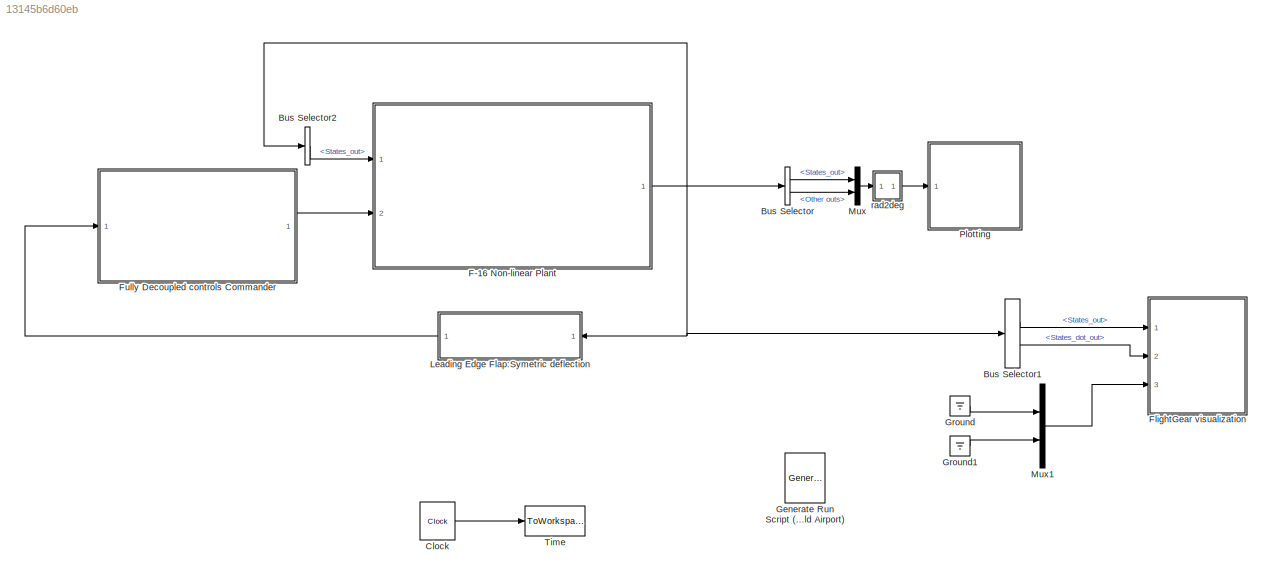
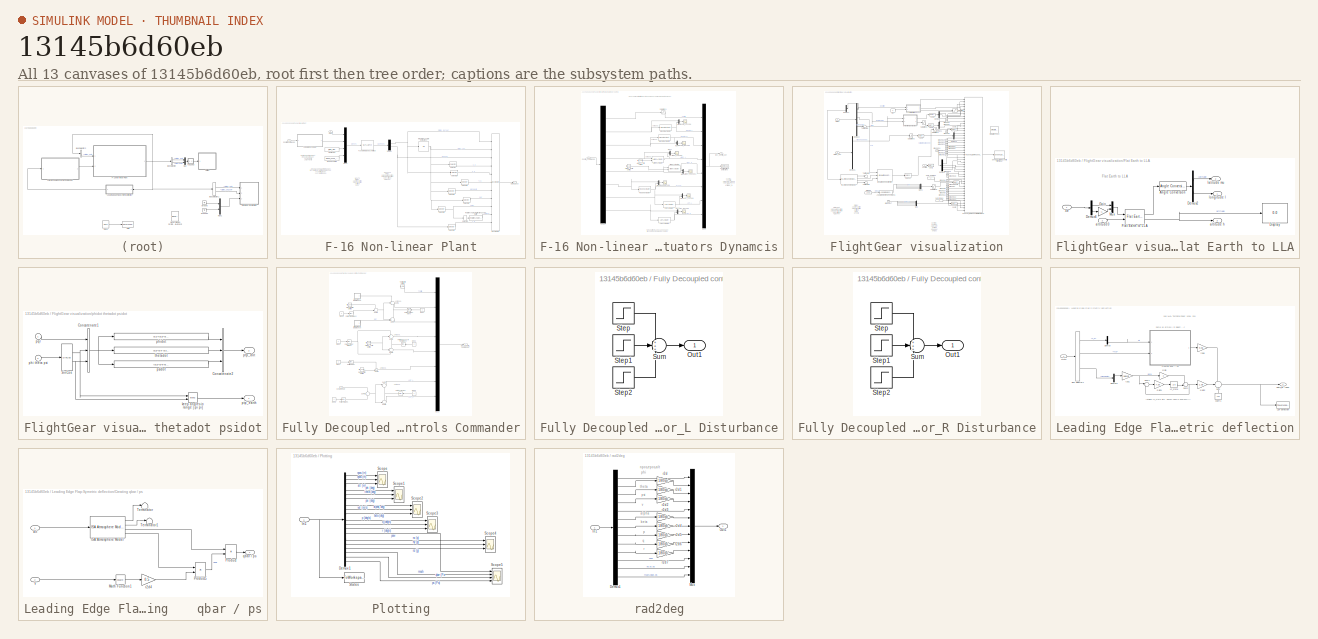
[diagram: thumbnail index - all 13 canvases of the model, root first then tree order]
MODEL slx_13145b6d60eb
KIND model
CONFIG InitFcn = mex nlplantASYM.c\n
BLOCK [BusSelector] Bus Selector
  OutputSignals = States_out,Other outs
  Ports = [1, 2]
BLOCK [BusSelector] Bus Selector1
  OutputSignals = States_out,States_dot_out
  Ports = [1, 2]
BLOCK [BusSelector] Bus Selector2
  OutputSignals = States_out
  Ports = [1, 1]
BLOCK [Clock] Clock
  Decimation = 50
  DisplayTime = on
BLOCK [SubSystem] F-16 Non-linear Plant
  FunctionWithSeparateData = off
  MaskHideContents = off
  MinAlgLoopOccurrences = off
  Opaque = off
  Ports = [2, 1]
  PropExecContextOutsideSubsystem = off
  RTWSystemCode = Auto
  RequestExecContextInheritance = off
BLOCK [SubSystem] F-16 Non-linear Plant/Actuators Dynamcis
  FunctionWithSeparateData = off
  MaskHideContents = off
  MinAlgLoopOccurrences = off
  Opaque = off
  Ports = [1, 1]
  PropExecContextOutsideSubsystem = off
  RTWSystemCode = Auto
  RequestExecContextInheritance = off
  TreatAsAtomicUnit = on
BLOCK [Reference] F-16 Non-linear Plant/Actuators Dynamcis/Aileron Actuator  REF=F16_Actuator_Library/Aileron
Actuator
  Ports = [2, 1]
  SourceBlock = F16_Actuator_Library/Aileron\nActuator
  SourceType = SubSystem
BLOCK [Reference] F-16 Non-linear Plant/Actuators Dynamcis/Aileron Actuator1  REF=F16_Actuator_Library/Aileron
Actuator
  Ports = [2, 1]
  SourceBlock = F16_Actuator_Library/Aileron\nActuator
  SourceType = SubSystem
BLOCK [Scope] F-16 Non-linear Plant/Actuators Dynamcis/Aileron_L Scope
  DataFormat = StructureWithTime
  Floating = off
  NumInputPorts = 1
  Ports = [1]
  SampleTime = 0
  SaveName = ScopeData7
  ShowLegends = off
  TimeRange = 30
BLOCK [Constant] F-16 Non-linear Plant/Actuators Dynamcis/Aileron_L Trim Setting
  Value = trim_control(2)
BLOCK [Scope] F-16 Non-linear Plant/Actuators Dynamcis/Aileron_R Scope1
  DataFormat = StructureWithTime
  Floating = off
  NumInputPorts = 1
  Ports = [1]
  SampleTime = 0
  SaveName = ScopeData10
  ShowLegends = off
  TimeRange = 30
BLOCK [Constant] F-16 Non-linear Plant/Actuators Dynamcis/Aileron_R Trim Setting
  Value = -trim_control(2)
BLOCK [ToWorkspace] F-16 Non-linear Plant/Actuators Dynamcis/Control Surface Deflections
  Decimation = 100
  MaxDataPoints = inf
  Ports = [1]
  SampleTime = -1
  VariableName = surfaces
BLOCK [Inport] F-16 Non-linear Plant/Actuators Dynamcis/Control_commands
  IconDisplay = Port number
BLOCK [Outport] F-16 Non-linear Plant/Actuators Dynamcis/Dec_Control_def
  IconDisplay = Port number
BLOCK [Demux] F-16 Non-linear Plant/Actuators Dynamcis/Demux
  DisplayOption = bar
  Outputs = 8
  Ports = [1, 8]
BLOCK [Reference] F-16 Non-linear Plant/Actuators Dynamcis/Elevator Actuator  REF=F16_Actuator_Library/Elevator
Actuator
  Ports = [1, 1]
  SourceBlock = F16_Actuator_Library/Elevator\nActuator
  SourceType = SubSystem
BLOCK [Reference] F-16 Non-linear Plant/Actuators Dynamcis/Elevator Actuator1  REF=F16_Actuator_Library/Elevator
Actuator
  Ports = [1, 1]
  SourceBlock = F16_Actuator_Library/Elevator\nActuator
  SourceType = SubSystem
BLOCK [Scope] F-16 Non-linear Plant/Actuators Dynamcis/Elevator_L Scope
  DataFormat = StructureWithTime
  Floating = off
  LimitDataPoints = off
  NumInputPorts = 1
  Ports = [1]
  SampleTime = 0
  SaveName = ScopeData6
  ShowLegends = off
  TimeRange = 5
  YMax = -2.33766
  YMin = -2.58372
BLOCK [Scope] F-16 Non-linear Plant/Actuators Dynamcis/Elevator_R Scope
  DataFormat = StructureWithTime
  Floating = off
  LimitDataPoints = off
  NumInputPorts = 1
  Ports = [1]
  SampleTime = 0
  SaveName = ScopeData9
  ShowLegends = off
  TimeRange = 5
  YMax = -2.33766
  YMin = -2.58372
BLOCK [Reference] F-16 Non-linear Plant/Actuators Dynamcis/LEF Actuator  REF=F16_Actuator_Library/LEF
Actuator
  Ports = [1, 1]
  SourceBlock = F16_Actuator_Library/LEF\nActuator
  SourceType = SubSystem
BLOCK [Reference] F-16 Non-linear Plant/Actuators Dynamcis/LEF Actuator1  REF=F16_Actuator_Library/LEF
Actuator
  Ports = [1, 1]
  SourceBlock = F16_Actuator_Library/LEF\nActuator
  SourceType = SubSystem
BLOCK [Scope] F-16 Non-linear Plant/Actuators Dynamcis/LEF_L Scope
  DataFormat = StructureWithTime
  Floating = off
  NumInputPorts = 1
  Ports = [1]
  SampleTime = 0
  SaveName = ScopeData11
  ShowLegends = off
BLOCK [Scope] F-16 Non-linear Plant/Actuators Dynamcis/LEF_R Scope
  DataFormat = StructureWithTime
  Floating = off
  NumInputPorts = 1
  Ports = [1]
  SampleTime = 0
  SaveName = ScopeData12
  ShowLegends = off
BLOCK [Mux] F-16 Non-linear Plant/Actuators Dynamcis/Mux
  DisplayOption = bar
  Inputs = 2
  Ports = [2, 1]
BLOCK [Mux] F-16 Non-linear Plant/Actuators Dynamcis/Mux1
  DisplayOption = bar
  Inputs = 2
  Ports = [2, 1]
BLOCK [Mux] F-16 Non-linear Plant/Actuators Dynamcis/Mux2
  DisplayOption = bar
  Inputs = 8
  Ports = [8, 1]
BLOCK [Mux] F-16 Non-linear Plant/Actuators Dynamcis/Mux3
  DisplayOption = bar
  Inputs = 2
  Ports = [2, 1]
BLOCK [Mux] F-16 Non-linear Plant/Actuators Dynamcis/Mux4
  DisplayOption = bar
  Inputs = 2
  Ports = [2, 1]
BLOCK [Mux] F-16 Non-linear Plant/Actuators Dynamcis/Mux5
  DisplayOption = bar
  Inputs = 2
  Ports = [2, 1]
BLOCK [Mux] F-16 Non-linear Plant/Actuators Dynamcis/Mux6
  DisplayOption = bar
  Inputs = 2
  Ports = [2, 1]
BLOCK [Mux] F-16 Non-linear Plant/Actuators Dynamcis/Mux7
  DisplayOption = bar
  Inputs = 2
  Ports = [2, 1]
BLOCK [Reference] F-16 Non-linear Plant/Actuators Dynamcis/Rudder Actuator  REF=F16_Actuator_Library/Rudder
Actuator
  Ports = [1, 1]
  SourceBlock = F16_Actuator_Library/Rudder\nActuator
  SourceType = SubSystem
BLOCK [Scope] F-16 Non-linear Plant/Actuators Dynamcis/Rudder Scope
  DataFormat = StructureWithTime
  Floating = off
  NumInputPorts = 1
  Ports = [1]
  SampleTime = 0
  SaveName = ScopeData8
  ShowLegends = off
BLOCK [Saturate] F-16 Non-linear Plant/Actuators Dynamcis/Saturation1
  InputPortMap = u0
  LowerLimit = 0
  Ports = [1, 1]
  UpperLimit = 1
BLOCK [BusCreator] F-16 Non-linear Plant/Bus Creator
  DisplayOption = bar
  Inputs = 11
  Ports = [11, 1]
BLOCK [Inport] F-16 Non-linear Plant/Control Commands
  IconDisplay = Port number
  Port = 2
BLOCK [Demux] F-16 Non-linear Plant/Demux
  Outputs = [13 6]
  Ports = [1, 2]
BLOCK [MATLABFcn] F-16 Non-linear Plant/F16 nlsim nlplant Asymetrical
  MATLABFcn = nlplantASYM
  OutputDimensions = 19
  OutputSignalType = real
  Ports = [1, 1]
BLOCK [Constant] F-16 Non-linear Plant/Fidelity Flag
  Value = fi_flag_Simulink
BLOCK [Integrator] F-16 Non-linear Plant/Integrate F16 State Derivatives
  InitialCondition = trim_state
  Ports = [1, 1]
BLOCK [Constant] F-16 Non-linear Plant/Model used flag
  Value = Model_used_flag
BLOCK [Mux] F-16 Non-linear Plant/Mux5
  DisplayOption = bar
  Inputs = [13 8 1 1]
  Ports = [4, 1]
BLOCK [Outport] F-16 Non-linear Plant/Output_bus
  IconDisplay = Port number
BLOCK [Reference] F-16 Non-linear Plant/Rotation Angles to Direction Cosine Matrix  REF=aerolibtransform2/Rotation Angles to
Direction Cosine Matrix
  AttributesFormatString = Rotation Order: %<rotationOrder>
  Ports = [1, 1]
  SourceBlock = aerolibtransform2/Rotation Angles to\nDirection Cosine Matrix
  SourceType = Ang2DCM
  rotationOrder = ZYX
BLOCK [Selector] F-16 Non-linear Plant/Selector
  IndexOptions = Index vector (dialog)
  Indices = [1:3]
  InputPortWidth = 13
  OutputSizes = 1
  Ports = [1, 1]
BLOCK [Selector] F-16 Non-linear Plant/Selector1
  IndexOptions = Index vector (dialog)
  Indices = [1:3]
  InputPortWidth = 13
  OutputSizes = 1
  Ports = [1, 1]
BLOCK [Selector] F-16 Non-linear Plant/Selector2
  IndexOptions = Index vector (dialog)
  Indices = [7]
  InputPortWidth = 13
  OutputSizes = 1
  Ports = [1, 1]
BLOCK [Selector] F-16 Non-linear Plant/Selector3
  IndexOptions = Index vector (dialog)
  Indices = [8:9]
  InputPortWidth = 13
  OutputSizes = 1
  Ports = [1, 1]
BLOCK [Selector] F-16 Non-linear Plant/Selector4
  IndexOptions = Index vector (dialog)
  Indices = [10:12]
  InputPortWidth = 13
  OutputSizes = 1
  Ports = [1, 1]
BLOCK [Selector] F-16 Non-linear Plant/Selector5
  IndexOptions = Index vector (dialog)
  Indices = [4:6]
  InputPortWidth = 13
  OutputSizes = 1
  Ports = [1, 1]
BLOCK [Selector] F-16 Non-linear Plant/Selector6
  IndexOptions = Index vector (dialog)
  Indices = [1:3]
  InputPortWidth = 6
  OutputSizes = 1
  Ports = [1, 1]
BLOCK [Selector] F-16 Non-linear Plant/Selector7
  IndexOptions = Index vector (dialog)
  Indices = [3 2 1]
  InputPortWidth = 3
  OutputSizes = 1
  Ports = [1, 1]
BLOCK [Inport] F-16 Non-linear Plant/States
  IconDisplay = Port number
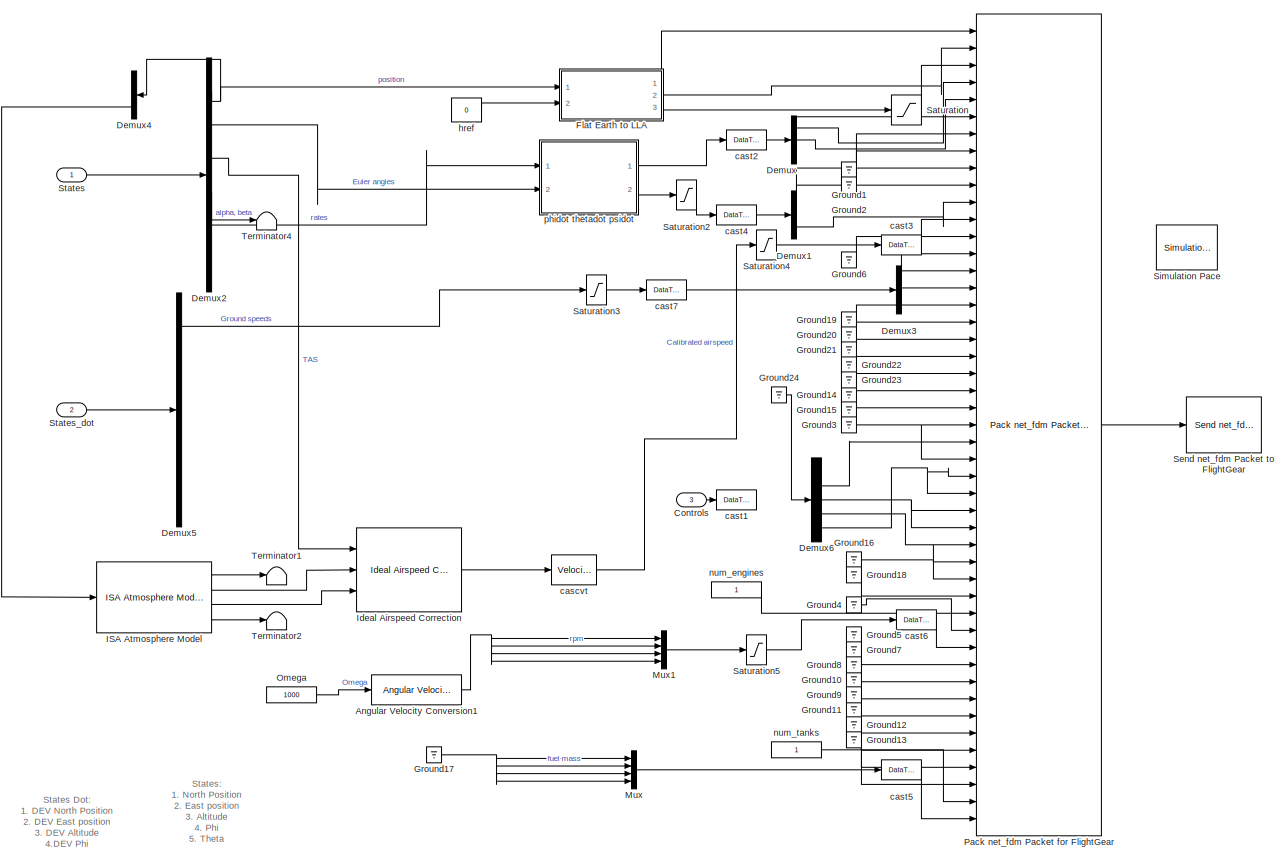
[diagram: FlightGear visualization - part 1/2, most of the canvas]
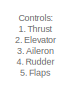
[diagram: FlightGear visualization - part 2/2, bottom center region]
BLOCK [SubSystem] FlightGear visualization
  FunctionWithSeparateData = off
  MaskHideContents = off
  MinAlgLoopOccurrences = off
  Opaque = off
  Ports = [3]
  PropExecContextOutsideSubsystem = off
  RTWSystemCode = Auto
  RequestExecContextInheritance = off
  TreatAsAtomicUnit = on
BLOCK [Reference] FlightGear visualization/Angular Velocity Conversion1  REF=aerolibconvert2/Angular Velocity
Conversion
  IU = rad/s
  OU = rpm
  Ports = [1, 1]
  SourceBlock = aerolibconvert2/Angular Velocity\nConversion
  SourceType = Angular Velocity Conversion
BLOCK [Inport] FlightGear visualization/Controls
  IconDisplay = Port number
  Port = 3
BLOCK [Demux] FlightGear visualization/Demux
  DisplayOption = bar
  Outputs = 3
  Ports = [1, 3]
BLOCK [Demux] FlightGear visualization/Demux1
  DisplayOption = bar
  Outputs = 3
  Ports = [1, 3]
BLOCK [Demux] FlightGear visualization/Demux2
  Outputs = [3 3 1 2 3 1]
  Ports = [1, 6]
BLOCK [Demux] FlightGear visualization/Demux3
  DisplayOption = bar
  Outputs = 3
  Ports = [1, 3]
BLOCK [Demux] FlightGear visualization/Demux4
  DisplayOption = bar
  Outputs = 3
  Ports = [1, 3]
BLOCK [Demux] FlightGear visualization/Demux5
  Outputs = [3 3 1 2 3 1]
  Ports = [1, 6]
BLOCK [Demux] FlightGear visualization/Demux6
  DisplayOption = bar
  Outputs = 5
  Ports = [1, 5]
BLOCK [SubSystem] FlightGear visualization/Flat Earth to LLA
  FunctionWithSeparateData = off
  MaskHideContents = off
  MinAlgLoopOccurrences = off
  Opaque = off
  Ports = [2, 3]
  PropExecContextOutsideSubsystem = off
  RTWSystemCode = Auto
  RequestExecContextInheritance = off
BLOCK [Reference] FlightGear visualization/Flat Earth to LLA/Angle Conversion  REF=aerolibconvert2/Angle Conversion
  IU = deg
  OU = rad
  Ports = [1, 1]
  SourceBlock = aerolibconvert2/Angle Conversion
  SourceType = Angle Conversion
BLOCK [Demux] FlightGear visualization/Flat Earth to LLA/Demux2
  Outputs = 2
  Ports = [1, 2]
BLOCK [Demux] FlightGear visualization/Flat Earth to LLA/Demux6
  DisplayOption = bar
  Outputs = [2 1]
  Ports = [1, 2]
BLOCK [Display] FlightGear visualization/Flat Earth to LLA/Display
  Decimation = 1
  Lockdown = off
  Ports = [1]
BLOCK [Reference] FlightGear visualization/Flat Earth to LLA/Flat Earth to LLA  REF=aerolibtransform2/Flat Earth to LLA
  F = 1/298.257223563
  LL0 = [latitude longitude]
  Ports = [2, 2]
  R = 6378137
  SourceBlock = aerolibtransform2/Flat Earth to LLA
  SourceType = Flat Earth to LLA
  psi = 0
  ptype = Earth (WGS84)
  units = Metric (MKS)
BLOCK [Gain] FlightGear visualization/Flat Earth to LLA/Gain
  Gain = -1
  OutDataTypeStr = Inherit: Inherit via internal rule
  ParamDataTypeStr = Inherit: Inherit via internal rule
  SaturateOnIntegerOverflow = off
BLOCK [Mux] FlightGear visualization/Flat Earth to LLA/Mux
  DisplayOption = bar
  Inputs = 2
  Ports = [2, 1]
BLOCK [Inport] FlightGear visualization/Flat Earth to LLA/Xe
  IconDisplay = Port number
BLOCK [Outport] FlightGear visualization/Flat Earth to LLA/altitude h
  IconDisplay = Port number
  Port = 3
BLOCK [Inport] FlightGear visualization/Flat Earth to LLA/altitude0
  IconDisplay = Port number
  Port = 2
BLOCK [Outport] FlightGear visualization/Flat Earth to LLA/latitude mu
  IconDisplay = Port number
  Port = 2
BLOCK [Outport] FlightGear visualization/Flat Earth to LLA/longitude l
  IconDisplay = Port number
BLOCK [Ground] FlightGear visualization/Ground1
BLOCK [Ground] FlightGear visualization/Ground10
BLOCK [Ground] FlightGear visualization/Ground11
BLOCK [Ground] FlightGear visualization/Ground12
BLOCK [Ground] FlightGear visualization/Ground13
BLOCK [Ground] FlightGear visualization/Ground14
BLOCK [Ground] FlightGear visualization/Ground15
BLOCK [Ground] FlightGear visualization/Ground16
BLOCK [Ground] FlightGear visualization/Ground17
BLOCK [Ground] FlightGear visualization/Ground18
BLOCK [Ground] FlightGear visualization/Ground19
BLOCK [Ground] FlightGear visualization/Ground2
BLOCK [Ground] FlightGear visualization/Ground20
BLOCK [Ground] FlightGear visualization/Ground21
BLOCK [Ground] FlightGear visualization/Ground22
BLOCK [Ground] FlightGear visualization/Ground23
BLOCK [Ground] FlightGear visualization/Ground24
BLOCK [Ground] FlightGear visualization/Ground3
BLOCK [Ground] FlightGear visualization/Ground4
BLOCK [Ground] FlightGear visualization/Ground5
BLOCK [Ground] FlightGear visualization/Ground6
BLOCK [Ground] FlightGear visualization/Ground7
BLOCK [Ground] FlightGear visualization/Ground8
BLOCK [Ground] FlightGear visualization/Ground9
BLOCK [Reference] FlightGear visualization/ISA Atmosphere Model  REF=aerolibatmos2/ISA Atmosphere Model
  L = 0.0065
  P0 = 101325
  Ports = [1, 4]
  R = 287.0531
  SourceBlock = aerolibatmos2/ISA Atmosphere Model
  SourceType = International Standard Atmosphere Model
  T0 = 288.15
  custom = off
  g = 9.80665
  gamma = 1.4
  h_strat = 20000
  h_trop = 11000
  rho0 = 1.225
BLOCK [Reference] FlightGear visualization/Ideal Airspeed Correction  REF=aerolibasang/Ideal Airspeed Correction
  Ports = [3, 1]
  SourceBlock = aerolibasang/Ideal Airspeed Correction
  SourceType = Ideal Airspeed Correction
  action = Warning
  units = Metric (MKS)
  vel_in = TAS
  vel_out_cas = TAS
  vel_out_eas = CAS
  vel_out_tas = CAS
BLOCK [Mux] FlightGear visualization/Mux
  DisplayOption = bar
  Ports = [4, 1]
BLOCK [Mux] FlightGear visualization/Mux1
  DisplayOption = bar
  Ports = [4, 1]
BLOCK [Constant] FlightGear visualization/Omega
  OutDataTypeStr = uint32
  Value = 1000
BLOCK [Reference] FlightGear visualization/Pack net_fdm Packet for FlightGear  REF=aerolibfltsims/Pack
net_fdm Packet
for FlightGear
  AttributesFormatString = FG VERSION: %<FlightGearVersion>
  FlightGearVersion = v2.0
  Ports = [47, 1]
  SampleTime = -1
  ShowControlSurfacePositionInputs = on
  ShowEngineFuelInputs = on
  ShowEnvironmentInputs = off
  ShowLandingGearInputs = off
  ShowPositionAttitudeInputs = on
  ShowVelocityAccelerationInputs = on
  SourceBlock = aerolibfltsims/Pack\nnet_fdm Packet\nfor FlightGear
  SourceType = FlightGearPackNetFdm
BLOCK [Saturate] FlightGear visualization/Saturation
  InputPortMap = u0
  LowerLimit = -1e5
  Ports = [1, 1]
  UpperLimit = 1e8
BLOCK [Saturate] FlightGear visualization/Saturation2
  InputPortMap = u0
  LowerLimit = -1e3
  Ports = [1, 1]
  UpperLimit = 1e3
BLOCK [Saturate] FlightGear visualization/Saturation3
  InputPortMap = u0
  LowerLimit = -1e4
  Ports = [1, 1]
  UpperLimit = 1e4
BLOCK [Saturate] FlightGear visualization/Saturation4
  InputPortMap = u0
  LowerLimit = -1e4
  Ports = [1, 1]
  UpperLimit = 1e4
BLOCK [Saturate] FlightGear visualization/Saturation5
  InputPortMap = u0
  LowerLimit = 0
  Ports = [1, 1]
  UpperLimit = 1e6
BLOCK [Reference] FlightGear visualization/Send net_fdm Packet to FlightGear  REF=aerolibfltsims/Send
net_fdm Packet
to FlightGear
  DestinationIpAddress = 127.0.0.1
  DestinationPort = 5502
  LocalIpPort = -1
  Ports = [1]
  SampleTime = -1
  SourceBlock = aerolibfltsims/Send\nnet_fdm Packet\nto FlightGear
  SourceType = FlightGearSendNetFdm
  varLen = off
BLOCK [Reference] FlightGear visualization/Simulation Pace  REF=aerolibanimutils/Simulation Pace
  AttributesFormatString = %<SimulationPace> sec/sec
  OutputPaceError = off
  Ports = []
  SampleTime = .04
  SimulationPace = 1
  SleepMode = MATLAB Thread
  SourceBlock = aerolibanimutils/Simulation Pace
  SourceType = Simulation Pace
BLOCK [Inport] FlightGear visualization/States
  IconDisplay = Port number
BLOCK [Inport] FlightGear visualization/States_dot
  IconDisplay = Port number
  Port = 2
BLOCK [Terminator] FlightGear visualization/Terminator1
BLOCK [Terminator] FlightGear visualization/Terminator2
BLOCK [Terminator] FlightGear visualization/Terminator4
BLOCK [Reference] FlightGear visualization/cascvt  REF=aerolibconvert/Velocity Conversion
  IU = m/s
  OU = kts
  Ports = [1, 1]
  SourceBlock = aerolibconvert/Velocity Conversion
  SourceType = Velocity Conversion
BLOCK [DataTypeConversion] FlightGear visualization/cast1
  OutDataTypeStr = single
  RndMeth = Floor
BLOCK [DataTypeConversion] FlightGear visualization/cast2
  OutDataTypeStr = single
  RndMeth = Floor
BLOCK [DataTypeConversion] FlightGear visualization/cast3
  OutDataTypeStr = single
  RndMeth = Floor
BLOCK [DataTypeConversion] FlightGear visualization/cast4
  OutDataTypeStr = single
  RndMeth = Floor
BLOCK [DataTypeConversion] FlightGear visualization/cast5
  OutDataTypeStr = single
  RndMeth = Floor
BLOCK [DataTypeConversion] FlightGear visualization/cast6
  OutDataTypeStr = single
  RndMeth = Floor
BLOCK [DataTypeConversion] FlightGear visualization/cast7
  OutDataTypeStr = single
  RndMeth = Floor
BLOCK [Constant] FlightGear visualization/href
  Value = 0
  VectorParams1D = off
BLOCK [Constant] FlightGear visualization/num_engines
  OutDataTypeStr = uint32
BLOCK [Constant] FlightGear visualization/num_tanks
  OutDataTypeStr = uint32
BLOCK [SubSystem] FlightGear visualization/phidot thetadot psidot
  FunctionWithSeparateData = off
  MaskHideContents = off
  MinAlgLoopOccurrences = off
  Opaque = off
  Ports = [2, 2]
  PropExecContextOutsideSubsystem = off
  RTWSystemCode = Auto
  RequestExecContextInheritance = off
BLOCK [Concatenate] FlightGear visualization/phidot thetadot psidot/Concatenate1
  NumInputs = 3
  Ports = [3, 1]
BLOCK [Concatenate] FlightGear visualization/phidot thetadot psidot/Concatenate2
  NumInputs = 3
  Ports = [3, 1]
BLOCK [Reference] FlightGear visualization/phidot thetadot psidot/SinCos  REF=aerolibobsolete/SinCos
  Ports = [1, 2]
  SourceBlock = aerolibobsolete/SinCos
  SourceType = SinCos
BLOCK [Trigonometry] FlightGear visualization/phidot thetadot psidot/keep angles in range [-pi pi]
  Operator = atan2
  Ports = [2, 1]
BLOCK [Inport] FlightGear visualization/phidot thetadot psidot/phi theta psi
  IconDisplay = Port number
  Port = 2
BLOCK [Fcn] FlightGear visualization/phidot thetadot psidot/phidot
  Expr = u[1]+(u[2]*u[4]+u[3]*u[7])*(u[5]/u[8])
BLOCK [Inport] FlightGear visualization/phidot thetadot psidot/pqr
  IconDisplay = Port number
BLOCK [Fcn] FlightGear visualization/phidot thetadot psidot/psidot
  Expr = (u[2]*u[4]+u[3]*u[7])/u[8]
BLOCK [Outport] FlightGear visualization/phidot thetadot psidot/ptp_dot
  IconDisplay = Port number
  Port = 2
BLOCK [Outport] FlightGear visualization/phidot thetadot psidot/ptp_earth
  IconDisplay = Port number
BLOCK [Fcn] FlightGear visualization/phidot thetadot psidot/thetadot
  Expr = u[2]*u[7]-u[3]*u[4]
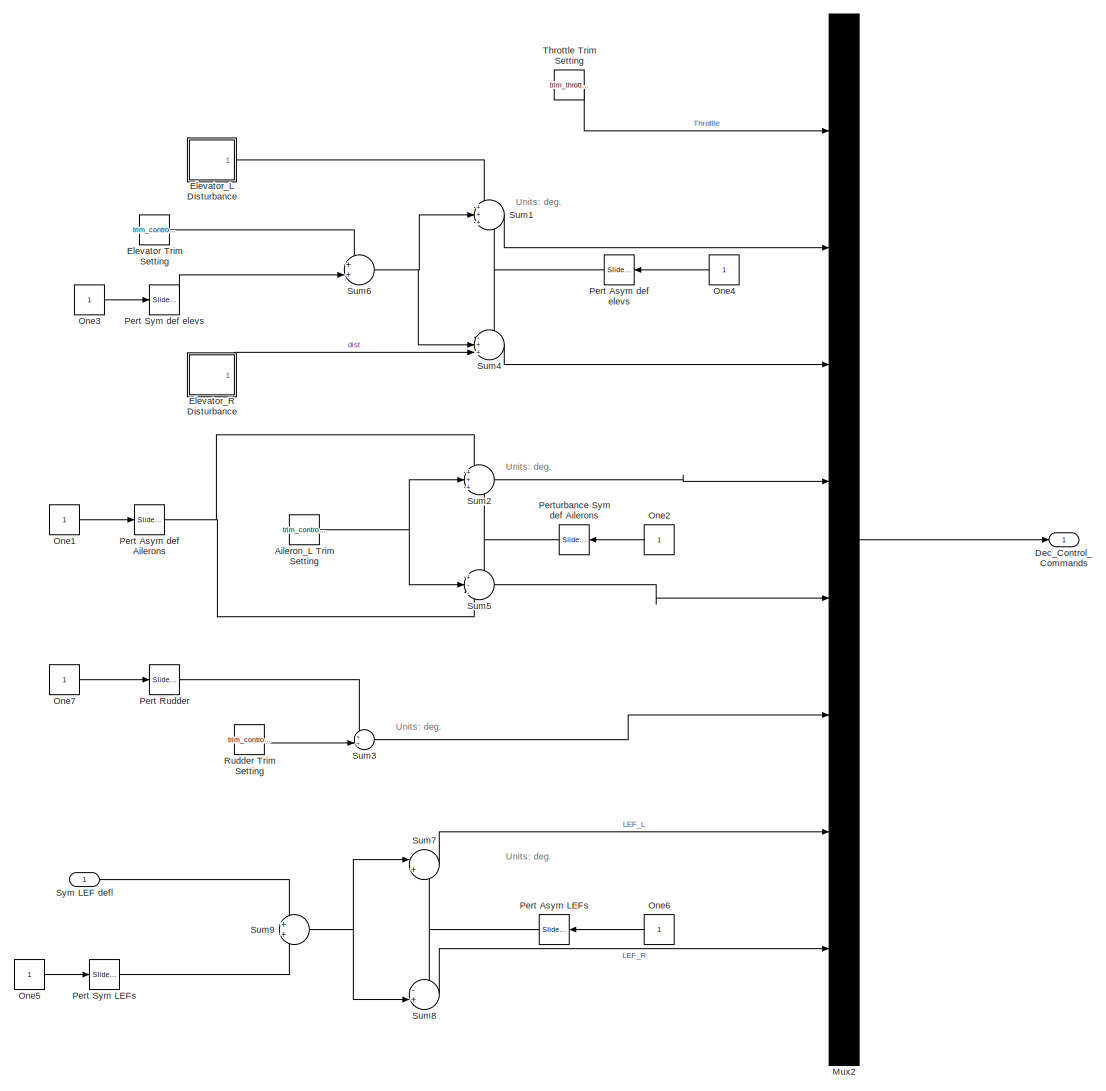
[diagram: Fully Decoupled controls Commander - part 1/1, most of the canvas]
BLOCK [SubSystem] Fully Decoupled controls Commander
  FunctionWithSeparateData = off
  MaskHideContents = off
  MinAlgLoopOccurrences = off
  Opaque = off
  Ports = [1, 1]
  PropExecContextOutsideSubsystem = off
  RTWSystemCode = Auto
  RequestExecContextInheritance = off
BLOCK [Constant] Fully Decoupled controls Commander/Aileron_L Trim Setting
  Value = trim_control(2)
BLOCK [Outport] Fully Decoupled controls Commander/Dec_Control_Commands
  IconDisplay = Port number
BLOCK [Constant] Fully Decoupled controls Commander/Elevator Trim Setting
  Value = trim_control(1)
  VectorParams1D = off
BLOCK [SubSystem] Fully Decoupled controls Commander/Elevator_L Disturbance
  FunctionWithSeparateData = off
  MaskHideContents = off
  MinAlgLoopOccurrences = off
  Opaque = off
  Ports = [0, 1]
  PropExecContextOutsideSubsystem = off
  RTWSystemCode = Auto
  RequestExecContextInheritance = off
BLOCK [Outport] Fully Decoupled controls Commander/Elevator_L Disturbance/Out1
  IconDisplay = Port number
BLOCK [Step] Fully Decoupled controls Commander/Elevator_L Disturbance/Step
  After = DisEle_1
  SampleTime = 0
BLOCK [Step] Fully Decoupled controls Commander/Elevator_L Disturbance/Step1
  After = DisEle_2
  SampleTime = 0
  Time = 3
BLOCK [Step] Fully Decoupled controls Commander/Elevator_L Disturbance/Step2
  After = DisEle_3
  SampleTime = 0
  Time = 5
BLOCK [Sum] Fully Decoupled controls Commander/Elevator_L Disturbance/Sum
  IconShape = round
  Inputs = +++
  Ports = [3, 1]
BLOCK [SubSystem] Fully Decoupled controls Commander/Elevator_R Disturbance
  FunctionWithSeparateData = off
  MaskHideContents = off
  MinAlgLoopOccurrences = off
  Opaque = off
  Ports = [0, 1]
  PropExecContextOutsideSubsystem = off
  RTWSystemCode = Auto
  RequestExecContextInheritance = off
BLOCK [Outport] Fully Decoupled controls Commander/Elevator_R Disturbance/Out1
  IconDisplay = Port number
BLOCK [Step] Fully Decoupled controls Commander/Elevator_R Disturbance/Step
  After = DisEle_1
  SampleTime = 0
BLOCK [Step] Fully Decoupled controls Commander/Elevator_R Disturbance/Step1
  After = DisEle_2
  SampleTime = 0
  Time = 3
BLOCK [Step] Fully Decoupled controls Commander/Elevator_R Disturbance/Step2
  After = DisEle_3
  SampleTime = 0
  Time = 5
BLOCK [Sum] Fully Decoupled controls Commander/Elevator_R Disturbance/Sum
  IconShape = round
  Inputs = +++
  Ports = [3, 1]
BLOCK [Mux] Fully Decoupled controls Commander/Mux2
  DisplayOption = bar
  Inputs = 8
  Ports = [8, 1]
BLOCK [Constant] Fully Decoupled controls Commander/One1
BLOCK [Constant] Fully Decoupled controls Commander/One2
BLOCK [Constant] Fully Decoupled controls Commander/One3
BLOCK [Constant] Fully Decoupled controls Commander/One4
BLOCK [Constant] Fully Decoupled controls Commander/One5
BLOCK [Constant] Fully Decoupled controls Commander/One6
BLOCK [Constant] Fully Decoupled controls Commander/One7
BLOCK [Reference] Fully Decoupled controls Commander/Pert Asym LEFs  REF=simulink/Math
Operations/Slider
Gain
  Ports = [1, 1]
  SourceBlock = simulink/Math\nOperations/Slider\nGain
  SourceType = Slider Gain
  gain = 0
  high = 50
  low = -50
BLOCK [Reference] Fully Decoupled controls Commander/Pert Asym def Ailerons  REF=simulink/Math
Operations/Slider
Gain
  Ports = [1, 1]
  SourceBlock = simulink/Math\nOperations/Slider\nGain
  SourceType = Slider Gain
  gain = 0
  high = 50
  low = -50
BLOCK [Reference] Fully Decoupled controls Commander/Pert Asym def elevs  REF=simulink/Math
Operations/Slider
Gain
  Ports = [1, 1]
  SourceBlock = simulink/Math\nOperations/Slider\nGain
  SourceType = Slider Gain
  gain = 0
  high = 50
  low = -50
BLOCK [Reference] Fully Decoupled controls Commander/Pert Rudder  REF=simulink/Math
Operations/Slider
Gain
  Ports = [1, 1]
  SourceBlock = simulink/Math\nOperations/Slider\nGain
  SourceType = Slider Gain
  gain = 0
  high = 50
  low = -50
BLOCK [Reference] Fully Decoupled controls Commander/Pert Sym LEFs  REF=simulink/Math
Operations/Slider
Gain
  Ports = [1, 1]
  SourceBlock = simulink/Math\nOperations/Slider\nGain
  SourceType = Slider Gain
  gain = 0
  high = 50
  low = -50
BLOCK [Reference] Fully Decoupled controls Commander/Pert Sym def elevs  REF=simulink/Math
Operations/Slider
Gain
  Ports = [1, 1]
  SourceBlock = simulink/Math\nOperations/Slider\nGain
  SourceType = Slider Gain
  gain = 0
  high = 50
  low = -50
BLOCK [Reference] Fully Decoupled controls Commander/Perturbance Sym def Ailerons  REF=simulink/Math
Operations/Slider
Gain
  Ports = [1, 1]
  SourceBlock = simulink/Math\nOperations/Slider\nGain
  SourceType = Slider Gain
  gain = 0
  high = 50
  low = -50
BLOCK [Constant] Fully Decoupled controls Commander/Rudder Trim Setting
  Value = trim_control(3)
BLOCK [Sum] Fully Decoupled controls Commander/Sum1
  IconShape = round
  Inputs = +++
  Ports = [3, 1]
BLOCK [Sum] Fully Decoupled controls Commander/Sum2
  IconShape = round
  Inputs = +++
  Ports = [3, 1]
BLOCK [Sum] Fully Decoupled controls Commander/Sum3
  IconShape = round
  Inputs = ++|
  Ports = [2, 1]
BLOCK [Sum] Fully Decoupled controls Commander/Sum4
  IconShape = round
  Inputs = -++
  Ports = [3, 1]
BLOCK [Sum] Fully Decoupled controls Commander/Sum5
  IconShape = round
  Inputs = +--
  Ports = [3, 1]
BLOCK [Sum] Fully Decoupled controls Commander/Sum6
  IconShape = round
  Ports = [2, 1]
BLOCK [Sum] Fully Decoupled controls Commander/Sum7
  IconShape = round
  Inputs = |++
  Ports = [2, 1]
BLOCK [Sum] Fully Decoupled controls Commander/Sum8
  IconShape = round
  Inputs = -+|
  Ports = [2, 1]
BLOCK [Sum] Fully Decoupled controls Commander/Sum9
  IconShape = round
  Ports = [2, 1]
BLOCK [Inport] Fully Decoupled controls Commander/Sym LEF defl
  IconDisplay = Port number
BLOCK [Constant] Fully Decoupled controls Commander/Throttle Trim Setting
  Value = trim_throttle
BLOCK [Reference] Generate Run Script (Cranfield Airport)  REF=aerolibfltsims/Generate
Run Script
  AirportId = EGTC
  Architecture = Win64
  DestinationPort = 5502
  FlightGearBaseDirectory = C:\Program Files\FlightGear
  GenerateFile = off
  GeometryModelName = f16
  InitialAltitude = trim_state(3)*3.2808399
  InitialHeading = 0
  LocalAddress = 127.0.0.1
  OffsetAzimuth = 0
  OffsetDistance = 4.72
  OriginAddress = 127.0.0.1
  OriginPort = 5505
  OutputFileName = runfg.bat
  Ports = []
  RunwayId = 1
  SourceBlock = aerolibfltsims/Generate\nRun Script
  SourceType = Generate FlightGear Run Script
  dataFlow = Send
BLOCK [Ground] Ground
BLOCK [Ground] Ground1
BLOCK [SubSystem] Leading Edge Flap:Symetric deflection
  FunctionWithSeparateData = off
  MaskHideContents = off
  MinAlgLoopOccurrences = off
  Opaque = off
  Ports = [1, 1]
  PropExecContextOutsideSubsystem = off
  RTWSystemCode = Auto
  RequestExecContextInheritance = off
BLOCK [BusSelector] Leading Edge Flap:Symetric deflection/Bus Selector1
  OutputSignals = X_e,TAS,alpha;beta
  Ports = [1, 3]
BLOCK [SubSystem] Leading Edge Flap:Symetric deflection/Creating    qbar // ps
  FunctionWithSeparateData = off
  MaskHideContents = off
  MinAlgLoopOccurrences = off
  Opaque = off
  Ports = [2, 1]
  PropExecContextOutsideSubsystem = off
  RTWSystemCode = Auto
  RequestExecContextInheritance = off
BLOCK [Reference] Leading Edge Flap:Symetric deflection/Creating    qbar // ps/ISA Atmosphere Model  REF=aerolibatmos2/ISA Atmosphere Model
  L = 0.0065
  P0 = 101325
  Ports = [1, 4]
  R = 287.0531
  SourceBlock = aerolibatmos2/ISA Atmosphere Model
  SourceType = International Standard Atmosphere Model
  T0 = 288.15
  custom = off
  g = 9.80665
  gamma = 1.4
  h_strat = 20000
  h_trop = 11000
  rho0 = 1.225
BLOCK [Math] Leading Edge Flap:Symetric deflection/Creating    qbar // ps/Math Function1
  Operator = square
  Ports = [1, 1]
BLOCK [Product] Leading Edge Flap:Symetric deflection/Creating    qbar // ps/Product
  Inputs = /*
  Ports = [2, 1]
  RndMeth = Floor
BLOCK [Product] Leading Edge Flap:Symetric deflection/Creating    qbar // ps/Product5
  Inputs = **
  Ports = [2, 1]
  RndMeth = Floor
BLOCK [Terminator] Leading Edge Flap:Symetric deflection/Creating    qbar // ps/Terminator
BLOCK [Terminator] Leading Edge Flap:Symetric deflection/Creating    qbar // ps/Terminator1
BLOCK [Inport] Leading Edge Flap:Symetric deflection/Creating    qbar // ps/V
  IconDisplay = Port number
  Port = 2
BLOCK [Inport] Leading Edge Flap:Symetric deflection/Creating    qbar // ps/alt
  IconDisplay = Port number
BLOCK [Outport] Leading Edge Flap:Symetric deflection/Creating    qbar // ps/qbar // ps
  IconDisplay = Port number
BLOCK [Gain] Leading Edge Flap:Symetric deflection/Creating    qbar // ps/r2d4
  Gain = 0.5
BLOCK [Demux] Leading Edge Flap:Symetric deflection/Demux
  DisplayOption = bar
  Outputs = 3
  Ports = [1, 3]
BLOCK [Demux] Leading Edge Flap:Symetric deflection/Demux1
  DisplayOption = bar
  Outputs = 2
  Ports = [1, 2]
BLOCK [Gain] Leading Edge Flap:Symetric deflection/Gain
  Gain = 2
BLOCK [Gain] Leading Edge Flap:Symetric deflection/Gain1
  Gain = 7.25
BLOCK [Gain] Leading Edge Flap:Symetric deflection/Gain2
  Gain = 1.38
BLOCK [ToWorkspace] Leading Edge Flap:Symetric deflection/LEF deflection
  Decimation = 100
  MaxDataPoints = inf
  Ports = [1]
  SampleTime = -1
  VariableName = d_LF
BLOCK [Integrator] Leading Edge Flap:Symetric deflection/LF_state
  InitialCondition = -trim_state(8)*180/pi
  Ports = [1, 1]
BLOCK [Sum] Leading Edge Flap:Symetric deflection/Sum
  IconShape = round
  Inputs = -|+|+
  Ports = [3, 1]
BLOCK [Sum] Leading Edge Flap:Symetric deflection/Sum1
  IconShape = round
  Inputs = |+-
  Ports = [2, 1]
BLOCK [Sum] Leading Edge Flap:Symetric deflection/Sum2
  IconShape = round
  Inputs = ++|
  Ports = [2, 1]
BLOCK [Constant] Leading Edge Flap:Symetric deflection/coeff1
  Value = 1.45
BLOCK [Outport] Leading Edge Flap:Symetric deflection/delta_lef (deg)
  IconDisplay = Port number
BLOCK [Gain] Leading Edge Flap:Symetric deflection/r2d1
  Gain = 180/pi
BLOCK [Gain] Leading Edge Flap:Symetric deflection/r2d6
  Gain = 9.05
BLOCK [Inport] Leading Edge Flap:Symetric deflection/state
  IconDisplay = Port number
BLOCK [Mux] Mux
  DisplayOption = bar
  Inputs = 2
  Ports = [2, 1]
BLOCK [Mux] Mux1
  DisplayOption = bar
  Inputs = 2
  Ports = [2, 1]
BLOCK [SubSystem] Plotting
  FunctionWithSeparateData = off
  MaskHideContents = off
  MinAlgLoopOccurrences = off
  Opaque = off
  Ports = [1]
  PropExecContextOutsideSubsystem = off
  RTWSystemCode = Auto
  RequestExecContextInheritance = off
BLOCK [Demux] Plotting/Demux1
  Outputs = 19
  Ports = [1, 19]
BLOCK [Inport] Plotting/In1
  IconDisplay = Port number
BLOCK [Scope] Plotting/Scope
  DataFormat = StructureWithTime
  Decimation = 20
  Floating = off
  LimitDataPoints = off
  NumInputPorts = 3
  Ports = [3]
  SampleTime = 0
  ShowLegends = off
  YMax = 13700~8.75e-11~13320
  YMin = 12100~6e-11~13235
BLOCK [Scope] Plotting/Scope1
  DataFormat = StructureWithTime
  Decimation = 20
  Floating = off
  LimitDataPoints = off
  NumInputPorts = 3
  Ports = [3]
  SampleTime = 0
  SaveName = ScopeData1
  ShowLegends = off
  TimeRange = 10
  YMax = 8~22.5~12
  YMin = -0.5~2.5~0
BLOCK [Scope] Plotting/Scope2
  DataFormat = StructureWithTime
  Decimation = 20
  Floating = off
  LimitDataPoints = off
  NumInputPorts = 3
  Ports = [3]
  SampleTime = 0
  SaveName = ScopeData2
  ShowLegends = off
  YMax = 160.001~3.89042~-0.337004
  YMin = 160~3.89041~-0.337005
  ZoomMode = xonly
BLOCK [Scope] Plotting/Scope3
  DataFormat = StructureWithTime
  Decimation = 20
  Floating = off
  LimitDataPoints = off
  NumInputPorts = 3
  Ports = [3]
  SampleTime = 0
  SaveName = ScopeData3
  ShowLegends = off
  YMax = 5~5~5
  YMin = -5~-5~-5
BLOCK [Scope] Plotting/Scope4
  DataFormat = StructureWithTime
  Decimation = 20
  Floating = off
  LimitDataPoints = off
  NumInputPorts = 3
  Ports = [3]
  SampleTime = 0
  SaveName = ScopeData4
  ShowLegends = off
  YMax = 5~5~5
  YMin = -5~-5~-5
BLOCK [Scope] Plotting/Scope5
  DataFormat = StructureWithTime
  Decimation = 20
  Floating = off
  LimitDataPoints = off
  NumInputPorts = 4
  Ports = [4]
  SampleTime = 0
  SaveName = ScopeData5
  ShowLegends = off
  YMax = 5~5~5~5
  YMin = -5~-5~-5~-5
BLOCK [ToWorkspace] Plotting/States
  Decimation = 100
  MaxDataPoints = inf
  Ports = [1]
  SampleTime = -1
  VariableName = y_sim
BLOCK [ToWorkspace] Time
  Decimation = 100
  MaxDataPoints = inf
  Ports = [1]
  SampleTime = -1
  VariableName = T
BLOCK [SubSystem] rad2deg
  FunctionWithSeparateData = off
  MaskHideContents = off
  MinAlgLoopOccurrences = off
  Opaque = off
  Ports = [1, 1]
  PropExecContextOutsideSubsystem = off
  RTWSystemCode = Auto
  RequestExecContextInheritance = off
BLOCK [Demux] rad2deg/Demux1
  Outputs = [3 1 1 1 1 1 1 1 1 1 1 3 3]
  Ports = [1, 13]
BLOCK [Inport] rad2deg/In1
  IconDisplay = Port number
BLOCK [Mux] rad2deg/Mux
  DisplayOption = bar
  Inputs = [3 1 1 1 1 1 1 1 1 1 1 3 3]
  Ports = [13, 1]
BLOCK [Outport] rad2deg/Out1
  IconDisplay = Port number
BLOCK [Gain] rad2deg/r2d
  Gain = 180/pi
BLOCK [Gain] rad2deg/r2d1
  Gain = 180/pi
BLOCK [Gain] rad2deg/r2d2
  Gain = 180/pi
BLOCK [Gain] rad2deg/r2d3
  Gain = 180/pi
BLOCK [Gain] rad2deg/r2d4
  Gain = 180/pi
BLOCK [Gain] rad2deg/r2d5
  Gain = 180/pi
BLOCK [Gain] rad2deg/r2d6
  Gain = 180/pi
BLOCK [Gain] rad2deg/r2d7
  Gain = 180/pi
ANNOTATION F-16 Non-linear Plant: Fidelity Flage tells nlplant which Model to use: 0: Low Fidelity 1: High Fidelity
ANNOTATION F-16 Non-linear Plant: INPUTS States: 1. North Position 2. East position 3. Altitude 4. Phi 5. Theta 6. Psi 7. Total velocity 8. alpha in rad 9. beta in rads 10. P 11. Q 12. R 13. POW Controls: 14. Throttle 15. Elevator_L in deg 16. Elevator_R in deg 17. Aileron_L 18. Aileron_R 19. Rudder 20. LEF_L 21. LEF_R 22. Fidelity Flag 23. Model used: Asymetric or Symetric
ANNOTATION F-16 Non-linear Plant: Mdoel used Flage tells the plant if Asymetric or symetric model is used: 0: Symetric Model 1: Asymetric model
ANNOTATION F-16 Non-linear Plant: OUTPUTS States: 1. DEV North Position 2. DEV East position 3. DEV Altitude 4.DEV Phi 5. DEV Theta 6. DEV Psi 7. DEV Total velocity 8.DEV alpha in rad 9.DEV beta in rads 10. DEV P 11. DEV Q 12. DEV R 13. DEV POW Other outputs: Accels of CG: 14. anx_cg 15. any_cg 16. anz_cg 17. mach 18. qbar 19. ps Static Pressure
ANNOTATION F-16 Non-linear Plant/Actuators Dynamcis: Controls: 1. Throttle 2. Elevator_L in deg 3. Elevator_R in deg 4. Aileron_L 5. Aileron_R 6. Rudder 7. LEF_L 8. LEF_R
ANNOTATION F-16 Non-linear Plant/Actuators Dynamcis: No dynamics for throttle since the engine dynamics is inside the model
ANNOTATION F-16 Non-linear Plant/Actuators Dynamcis: This addition in LEFs can be done if assumed Linear aerodynamics
ANNOTATION F-16 Non-linear Plant/Actuators Dynamcis: Units: deg.
ANNOTATION FlightGear visualization: States Dot: 1. DEV North Position 2. DEV East position 3. DEV Altitude 4.DEV Phi 5. DEV Theta 6. DEV Psi 7. DEV Total velocity 8.DEV alpha in rad 9.DEV beta in rads 10. DEV P 11. DEV Q 12. DEV R
ANNOTATION FlightGear visualization: Controls: 1. Thrust 2. Elevator 3. Aileron 4. Rudder 5. Flaps
ANNOTATION FlightGear visualization: States: 1. North Position 2. East position 3. Altitude 4. Phi 5. Theta 6. Psi 7. Total velocity 8. alpha in rad 9. beta in rads 10. P 11. Q 12. R
ANNOTATION FlightGear visualization/Flat Earth to LLA: Flat Earth to LLA
ANNOTATION Fully Decoupled controls Commander: Units: deg.
ANNOTATION Leading Edge Flap:Symetric deflection: Initialize LF_state with -alpha0 value in degrees!!!!
ANNOTATION Leading Edge Flap:Symetric deflection: Same as atmos() in nlplant...c
ANNOTATION Leading Edge Flap:Symetric deflection: see NASA Technical Paper 1538, p34
ANNOTATION rad2deg: alpha
ANNOTATION rad2deg: beta
ANNOTATION rad2deg: npos,epos,alt
ANNOTATION rad2deg: p
ANNOTATION rad2deg: phi
ANNOTATION rad2deg: psi
ANNOTATION rad2deg: q
ANNOTATION rad2deg: r
ANNOTATION rad2deg: theta
ANNOTATION rad2deg: v
LINE Bus Selector1:1 -> FlightGear visualization:1
LINE Bus Selector1:2 -> FlightGear visualization:2
LINE Bus Selector2:1 -> F-16 Non-linear Plant:1
LINE Bus Selector:1 -> Mux:1
LINE Bus Selector:2 -> Mux:2
LINE Clock:1 -> Time:1
NET F-16 Non-linear Plant/Actuators Dynamcis/Aileron Actuator1:1 -> F-16 Non-linear Plant/Actuators Dynamcis/Mux2:5, F-16 Non-linear Plant/Actuators Dynamcis/Mux5:1
NET F-16 Non-linear Plant/Actuators Dynamcis/Aileron Actuator:1 -> F-16 Non-linear Plant/Actuators Dynamcis/Mux1:2, F-16 Non-linear Plant/Actuators Dynamcis/Mux2:4
LINE F-16 Non-linear Plant/Actuators Dynamcis/Aileron_L Trim Setting:1 -> F-16 Non-linear Plant/Actuators Dynamcis/Aileron Actuator:2
LINE F-16 Non-linear Plant/Actuators Dynamcis/Aileron_R Trim Setting:1 -> F-16 Non-linear Plant/Actuators Dynamcis/Aileron Actuator1:2
LINE F-16 Non-linear Plant/Actuators Dynamcis/Control_commands:1 -> F-16 Non-linear Plant/Actuators Dynamcis/Demux:1
LINE F-16 Non-linear Plant/Actuators Dynamcis/Demux:1 -> F-16 Non-linear Plant/Actuators Dynamcis/Saturation1:1
NET F-16 Non-linear Plant/Actuators Dynamcis/Demux:2 -> F-16 Non-linear Plant/Actuators Dynamcis/Elevator Actuator:1, F-16 Non-linear Plant/Actuators Dynamcis/Mux:1
NET F-16 Non-linear Plant/Actuators Dynamcis/Demux:3 -> F-16 Non-linear Plant/Actuators Dynamcis/Elevator Actuator1:1, F-16 Non-linear Plant/Actuators Dynamcis/Mux4:2
NET F-16 Non-linear Plant/Actuators Dynamcis/Demux:4 -> F-16 Non-linear Plant/Actuators Dynamcis/Aileron Actuator:1, F-16 Non-linear Plant/Actuators Dynamcis/Mux1:1
NET F-16 Non-linear Plant/Actuators Dynamcis/Demux:5 -> F-16 Non-linear Plant/Actuators Dynamcis/Aileron Actuator1:1, F-16 Non-linear Plant/Actuators Dynamcis/Mux5:2
NET F-16 Non-linear Plant/Actuators Dynamcis/Demux:6 -> F-16 Non-linear Plant/Actuators Dynamcis/Mux3:1, F-16 Non-linear Plant/Actuators Dynamcis/Rudder Actuator:1
NET F-16 Non-linear Plant/Actuators Dynamcis/Demux:7 -> F-16 Non-linear Plant/Actuators Dynamcis/LEF Actuator:1, F-16 Non-linear Plant/Actuators Dynamcis/Mux6:1
NET F-16 Non-linear Plant/Actuators Dynamcis/Demux:8 -> F-16 Non-linear Plant/Actuators Dynamcis/LEF Actuator1:1, F-16 Non-linear Plant/Actuators Dynamcis/Mux7:1
NET F-16 Non-linear Plant/Actuators Dynamcis/Elevator Actuator1:1 -> F-16 Non-linear Plant/Actuators Dynamcis/Mux2:3, F-16 Non-linear Plant/Actuators Dynamcis/Mux4:1
NET F-16 Non-linear Plant/Actuators Dynamcis/Elevator Actuator:1 -> F-16 Non-linear Plant/Actuators Dynamcis/Mux2:2, F-16 Non-linear Plant/Actuators Dynamcis/Mux:2
NET F-16 Non-linear Plant/Actuators Dynamcis/LEF Actuator1:1 -> F-16 Non-linear Plant/Actuators Dynamcis/Mux2:8, F-16 Non-linear Plant/Actuators Dynamcis/Mux7:2
NET F-16 Non-linear Plant/Actuators Dynamcis/LEF Actuator:1 -> F-16 Non-linear Plant/Actuators Dynamcis/Mux2:7, F-16 Non-linear Plant/Actuators Dynamcis/Mux6:2
LINE F-16 Non-linear Plant/Actuators Dynamcis/Mux1:1 -> F-16 Non-linear Plant/Actuators Dynamcis/Aileron_L Scope:1
NET F-16 Non-linear Plant/Actuators Dynamcis/Mux2:1 -> F-16 Non-linear Plant/Actuators Dynamcis/Control Surface Deflections:1, F-16 Non-linear Plant/Actuators Dynamcis/Dec_Control_def:1
LINE F-16 Non-linear Plant/Actuators Dynamcis/Mux3:1 -> F-16 Non-linear Plant/Actuators Dynamcis/Rudder Scope:1
LINE F-16 Non-linear Plant/Actuators Dynamcis/Mux4:1 -> F-16 Non-linear Plant/Actuators Dynamcis/Elevator_R Scope:1
LINE F-16 Non-linear Plant/Actuators Dynamcis/Mux5:1 -> F-16 Non-linear Plant/Actuators Dynamcis/Aileron_R Scope1:1
LINE F-16 Non-linear Plant/Actuators Dynamcis/Mux6:1 -> F-16 Non-linear Plant/Actuators Dynamcis/LEF_L Scope:1
LINE F-16 Non-linear Plant/Actuators Dynamcis/Mux7:1 -> F-16 Non-linear Plant/Actuators Dynamcis/LEF_R Scope:1
LINE F-16 Non-linear Plant/Actuators Dynamcis/Mux:1 -> F-16 Non-linear Plant/Actuators Dynamcis/Elevator_L Scope:1
NET F-16 Non-linear Plant/Actuators Dynamcis/Rudder Actuator:1 -> F-16 Non-linear Plant/Actuators Dynamcis/Mux2:6, F-16 Non-linear Plant/Actuators Dynamcis/Mux3:2
LINE F-16 Non-linear Plant/Actuators Dynamcis/Saturation1:1 -> F-16 Non-linear Plant/Actuators Dynamcis/Mux2:1
LINE F-16 Non-linear Plant/Actuators Dynamcis:1 -> F-16 Non-linear Plant/Mux5:2
LINE F-16 Non-linear Plant/Bus Creator:1 -> F-16 Non-linear Plant/Output_bus:1
LINE F-16 Non-linear Plant/Control Commands:1 -> F-16 Non-linear Plant/Actuators Dynamcis:1
NET F-16 Non-linear Plant/Demux:1 -> F-16 Non-linear Plant/Bus Creator:1, F-16 Non-linear Plant/Integrate F16 State Derivatives:1, F-16 Non-linear Plant/Selector1:1
NET F-16 Non-linear Plant/Demux:2 -> F-16 Non-linear Plant/Bus Creator:3, F-16 Non-linear Plant/Selector6:1
LINE F-16 Non-linear Plant/F16 nlsim nlplant Asymetrical:1 -> F-16 Non-linear Plant/Demux:1
LINE F-16 Non-linear Plant/Fidelity Flag:1 -> F-16 Non-linear Plant/Mux5:3
NET F-16 Non-linear Plant/Integrate F16 State Derivatives:1 -> F-16 Non-linear Plant/Bus Creator:2, F-16 Non-linear Plant/Selector2:1, F-16 Non-linear Plant/Selector3:1, F-16 Non-linear Plant/Selector4:1, F-16 Non-linear Plant/Selector5:1, F-16 Non-linear Plant/Selector:1
LINE F-16 Non-linear Plant/Model used flag:1 -> F-16 Non-linear Plant/Mux5:4
LINE F-16 Non-linear Plant/Mux5:1 -> F-16 Non-linear Plant/F16 nlsim nlplant Asymetrical:1
LINE F-16 Non-linear Plant/Rotation Angles to Direction Cosine Matrix:1 -> F-16 Non-linear Plant/Bus Creator:10
LINE F-16 Non-linear Plant/Selector1:1 -> F-16 Non-linear Plant/Bus Creator:5
LINE F-16 Non-linear Plant/Selector2:1 -> F-16 Non-linear Plant/Bus Creator:6
LINE F-16 Non-linear Plant/Selector3:1 -> F-16 Non-linear Plant/Bus Creator:7
LINE F-16 Non-linear Plant/Selector4:1 -> F-16 Non-linear Plant/Bus Creator:8
NET F-16 Non-linear Plant/Selector5:1 -> F-16 Non-linear Plant/Bus Creator:9, F-16 Non-linear Plant/Selector7:1
LINE F-16 Non-linear Plant/Selector6:1 -> F-16 Non-linear Plant/Bus Creator:11
LINE F-16 Non-linear Plant/Selector7:1 -> F-16 Non-linear Plant/Rotation Angles to Direction Cosine Matrix:1
LINE F-16 Non-linear Plant/Selector:1 -> F-16 Non-linear Plant/Bus Creator:4
LINE F-16 Non-linear Plant/States:1 -> F-16 Non-linear Plant/Mux5:1
NET F-16 Non-linear Plant:1 -> Bus Selector1:1, Bus Selector2:1, Bus Selector:1, Leading Edge Flap:Symetric deflection:1
NET FlightGear visualization/Angular Velocity Conversion1:1 -> FlightGear visualization/Mux1:1, FlightGear visualization/Mux1:2, FlightGear visualization/Mux1:3, FlightGear visualization/Mux1:4
LINE FlightGear visualization/Controls:1 -> FlightGear visualization/cast1:1
LINE FlightGear visualization/Demux1:1 -> FlightGear visualization/Pack net_fdm Packet for FlightGear:9
LINE FlightGear visualization/Demux1:2 -> FlightGear visualization/Pack net_fdm Packet for FlightGear:10
LINE FlightGear visualization/Demux1:3 -> FlightGear visualization/Pack net_fdm Packet for FlightGear:11
NET FlightGear visualization/Demux2:1 -> FlightGear visualization/Demux4:1, FlightGear visualization/Flat Earth to LLA:1
LINE FlightGear visualization/Demux2:2 -> FlightGear visualization/phidot thetadot psidot:2
LINE FlightGear visualization/Demux2:3 -> FlightGear visualization/Ideal Airspeed Correction:1
LINE FlightGear visualization/Demux2:4 -> FlightGear visualization/Terminator4:1
LINE FlightGear visualization/Demux2:5 -> FlightGear visualization/phidot thetadot psidot:1
LINE FlightGear visualization/Demux3:1 -> FlightGear visualization/Pack net_fdm Packet for FlightGear:14
LINE FlightGear visualization/Demux3:2 -> FlightGear visualization/Pack net_fdm Packet for FlightGear:15
LINE FlightGear visualization/Demux3:3 -> FlightGear visualization/Pack net_fdm Packet for FlightGear:16
LINE FlightGear visualization/Demux4:3 -> FlightGear visualization/ISA Atmosphere Model:1
LINE FlightGear visualization/Demux5:1 -> FlightGear visualization/Saturation3:1
LINE FlightGear visualization/Demux6:2 -> FlightGear visualization/Pack net_fdm Packet for FlightGear:25
NET FlightGear visualization/Demux6:3 -> FlightGear visualization/Pack net_fdm Packet for FlightGear:29, FlightGear visualization/Pack net_fdm Packet for FlightGear:30
LINE FlightGear visualization/Demux6:4 -> FlightGear visualization/Pack net_fdm Packet for FlightGear:31
NET FlightGear visualization/Demux6:5 -> FlightGear visualization/Pack net_fdm Packet for FlightGear:27, FlightGear visualization/Pack net_fdm Packet for FlightGear:28
LINE FlightGear visualization/Demux:1 -> FlightGear visualization/Pack net_fdm Packet for FlightGear:4
LINE FlightGear visualization/Demux:2 -> FlightGear visualization/Pack net_fdm Packet for FlightGear:5
LINE FlightGear visualization/Demux:3 -> FlightGear visualization/Pack net_fdm Packet for FlightGear:6
LINE FlightGear visualization/Flat Earth to LLA/Angle Conversion:1 -> FlightGear visualization/Flat Earth to LLA/Demux2:1
LINE FlightGear visualization/Flat Earth to LLA/Demux2:1 -> FlightGear visualization/Flat Earth to LLA/latitude mu:1
LINE FlightGear visualization/Flat Earth to LLA/Demux2:2 -> FlightGear visualization/Flat Earth to LLA/longitude l:1
LINE FlightGear visualization/Flat Earth to LLA/Demux6:1 -> FlightGear visualization/Flat Earth to LLA/Mux:1
LINE FlightGear visualization/Flat Earth to LLA/Demux6:2 -> FlightGear visualization/Flat Earth to LLA/Gain:1
LINE FlightGear visualization/Flat Earth to LLA/Flat Earth to LLA:1 -> FlightGear visualization/Flat Earth to LLA/Angle Conversion:1
NET FlightGear visualization/Flat Earth to LLA/Flat Earth to LLA:2 -> FlightGear visualization/Flat Earth to LLA/Display:1, FlightGear visualization/Flat Earth to LLA/altitude h:1
LINE FlightGear visualization/Flat Earth to LLA/Gain:1 -> FlightGear visualization/Flat Earth to LLA/Mux:2
LINE FlightGear visualization/Flat Earth to LLA/Mux:1 -> FlightGear visualization/Flat Earth to LLA/Flat Earth to LLA:1
LINE FlightGear visualization/Flat Earth to LLA/Xe:1 -> FlightGear visualization/Flat Earth to LLA/Demux6:1
LINE FlightGear visualization/Flat Earth to LLA/altitude0:1 -> FlightGear visualization/Flat Earth to LLA/Flat Earth to LLA:2
LINE FlightGear visualization/Flat Earth to LLA:1 -> FlightGear visualization/Pack net_fdm Packet for FlightGear:1
LINE FlightGear visualization/Flat Earth to LLA:2 -> FlightGear visualization/Pack net_fdm Packet for FlightGear:2
LINE FlightGear visualization/Flat Earth to LLA:3 -> FlightGear visualization/Saturation:1
LINE FlightGear visualization/Ground10:1 -> FlightGear visualization/Pack net_fdm Packet for FlightGear:41
LINE FlightGear visualization/Ground11:1 -> FlightGear visualization/Pack net_fdm Packet for FlightGear:43
LINE FlightGear visualization/Ground12:1 -> FlightGear visualization/Pack net_fdm Packet for FlightGear:44
LINE FlightGear visualization/Ground13:1 -> FlightGear visualization/Pack net_fdm Packet for FlightGear:45
LINE FlightGear visualization/Ground14:1 -> FlightGear visualization/Pack net_fdm Packet for FlightGear:22
LINE FlightGear visualization/Ground15:1 -> FlightGear visualization/Pack net_fdm Packet for FlightGear:23
NET FlightGear visualization/Ground16:1 -> FlightGear visualization/Pack net_fdm Packet for FlightGear:32, FlightGear visualization/Pack net_fdm Packet for FlightGear:33
NET FlightGear visualization/Ground17:1 -> FlightGear visualization/Mux:1, FlightGear visualization/Mux:2, FlightGear visualization/Mux:3, FlightGear visualization/Mux:4
LINE FlightGear visualization/Ground18:1 -> FlightGear visualization/Pack net_fdm Packet for FlightGear:34
LINE FlightGear visualization/Ground19:1 -> FlightGear visualization/Pack net_fdm Packet for FlightGear:17
LINE FlightGear visualization/Ground1:1 -> FlightGear visualization/Pack net_fdm Packet for FlightGear:7
LINE FlightGear visualization/Ground20:1 -> FlightGear visualization/Pack net_fdm Packet for FlightGear:18
LINE FlightGear visualization/Ground21:1 -> FlightGear visualization/Pack net_fdm Packet for FlightGear:19
LINE FlightGear visualization/Ground22:1 -> FlightGear visualization/Pack net_fdm Packet for FlightGear:20
LINE FlightGear visualization/Ground23:1 -> FlightGear visualization/Pack net_fdm Packet for FlightGear:21
LINE FlightGear visualization/Ground24:1 -> FlightGear visualization/Demux6:1
LINE FlightGear visualization/Ground2:1 -> FlightGear visualization/Pack net_fdm Packet for FlightGear:8
NET FlightGear visualization/Ground3:1 -> FlightGear visualization/Pack net_fdm Packet for FlightGear:24, FlightGear visualization/Pack net_fdm Packet for FlightGear:26
LINE FlightGear visualization/Ground4:1 -> FlightGear visualization/Pack net_fdm Packet for FlightGear:36
LINE FlightGear visualization/Ground5:1 -> FlightGear visualization/Pack net_fdm Packet for FlightGear:38
LINE FlightGear visualization/Ground6:1 -> FlightGear visualization/Pack net_fdm Packet for FlightGear:13
LINE FlightGear visualization/Ground7:1 -> FlightGear visualization/Pack net_fdm Packet for FlightGear:39
LINE FlightGear visualization/Ground8:1 -> FlightGear visualization/Pack net_fdm Packet for FlightGear:40
LINE FlightGear visualization/Ground9:1 -> FlightGear visualization/Pack net_fdm Packet for FlightGear:42
LINE FlightGear visualization/ISA Atmosphere Model:1 -> FlightGear visualization/Terminator1:1
LINE FlightGear visualization/ISA Atmosphere Model:2 -> FlightGear visualization/Ideal Airspeed Correction:2
LINE FlightGear visualization/ISA Atmosphere Model:3 -> FlightGear visualization/Ideal Airspeed Correction:3
LINE FlightGear visualization/ISA Atmosphere Model:4 -> FlightGear visualization/Terminator2:1
LINE FlightGear visualization/Ideal Airspeed Correction:1 -> FlightGear visualization/cascvt:1
LINE FlightGear visualization/Mux1:1 -> FlightGear visualization/Saturation5:1
LINE FlightGear visualization/Mux:1 -> FlightGear visualization/cast5:1
LINE FlightGear visualization/Omega:1 -> FlightGear visualization/Angular Velocity Conversion1:1
LINE FlightGear visualization/Pack net_fdm Packet for FlightGear:1 -> FlightGear visualization/Send net_fdm Packet to FlightGear:1
LINE FlightGear visualization/Saturation2:1 -> FlightGear visualization/cast4:1
LINE FlightGear visualization/Saturation3:1 -> FlightGear visualization/cast7:1
LINE FlightGear visualization/Saturation4:1 -> FlightGear visualization/cast3:1
LINE FlightGear visualization/Saturation5:1 -> FlightGear visualization/cast6:1
LINE FlightGear visualization/Saturation:1 -> FlightGear visualization/Pack net_fdm Packet for FlightGear:3
LINE FlightGear visualization/States:1 -> FlightGear visualization/Demux2:1
LINE FlightGear visualization/States_dot:1 -> FlightGear visualization/Demux5:1
LINE FlightGear visualization/cascvt:1 -> FlightGear visualization/Saturation4:1
LINE FlightGear visualization/cast2:1 -> FlightGear visualization/Demux:1
LINE FlightGear visualization/cast3:1 -> FlightGear visualization/Pack net_fdm Packet for FlightGear:12
LINE FlightGear visualization/cast4:1 -> FlightGear visualization/Demux1:1
LINE FlightGear visualization/cast5:1 -> FlightGear visualization/Pack net_fdm Packet for FlightGear:47
LINE FlightGear visualization/cast6:1 -> FlightGear visualization/Pack net_fdm Packet for FlightGear:37
LINE FlightGear visualization/cast7:1 -> FlightGear visualization/Demux3:1
LINE FlightGear visualization/href:1 -> FlightGear visualization/Flat Earth to LLA:2
LINE FlightGear visualization/num_engines:1 -> FlightGear visualization/Pack net_fdm Packet for FlightGear:35
LINE FlightGear visualization/num_tanks:1 -> FlightGear visualization/Pack net_fdm Packet for FlightGear:46
NET FlightGear visualization/phidot thetadot psidot/Concatenate1:1 -> FlightGear visualization/phidot thetadot psidot/phidot:1, FlightGear visualization/phidot thetadot psidot/psidot:1, FlightGear visualization/phidot thetadot psidot/thetadot:1
LINE FlightGear visualization/phidot thetadot psidot/Concatenate2:1 -> FlightGear visualization/phidot thetadot psidot/ptp_dot:1
NET FlightGear visualization/phidot thetadot psidot/SinCos:1 -> FlightGear visualization/phidot thetadot psidot/Concatenate1:2, FlightGear visualization/phidot thetadot psidot/keep angles in range [-pi pi]:1
NET FlightGear visualization/phidot thetadot psidot/SinCos:2 -> FlightGear visualization/phidot thetadot psidot/Concatenate1:3, FlightGear visualization/phidot thetadot psidot/keep angles in range [-pi pi]:2
LINE FlightGear visualization/phidot thetadot psidot/keep angles in range [-pi pi]:1 -> FlightGear visualization/phidot thetadot psidot/ptp_earth:1
LINE FlightGear visualization/phidot thetadot psidot/phi theta psi:1 -> FlightGear visualization/phidot thetadot psidot/SinCos:1
LINE FlightGear visualization/phidot thetadot psidot/phidot:1 -> FlightGear visualization/phidot thetadot psidot/Concatenate2:1
LINE FlightGear visualization/phidot thetadot psidot/pqr:1 -> FlightGear visualization/phidot thetadot psidot/Concatenate1:1
LINE FlightGear visualization/phidot thetadot psidot/psidot:1 -> FlightGear visualization/phidot thetadot psidot/Concatenate2:3
LINE FlightGear visualization/phidot thetadot psidot/thetadot:1 -> FlightGear visualization/phidot thetadot psidot/Concatenate2:2
LINE FlightGear visualization/phidot thetadot psidot:1 -> FlightGear visualization/cast2:1
LINE FlightGear visualization/phidot thetadot psidot:2 -> FlightGear visualization/Saturation2:1
NET Fully Decoupled controls Commander/Aileron_L Trim Setting:1 -> Fully Decoupled controls Commander/Sum2:2, Fully Decoupled controls Commander/Sum5:2
LINE Fully Decoupled controls Commander/Elevator Trim Setting:1 -> Fully Decoupled controls Commander/Sum6:1
LINE Fully Decoupled controls Commander/Elevator_L Disturbance/Step1:1 -> Fully Decoupled controls Commander/Elevator_L Disturbance/Sum:2
LINE Fully Decoupled controls Commander/Elevator_L Disturbance/Step2:1 -> Fully Decoupled controls Commander/Elevator_L Disturbance/Sum:3
LINE Fully Decoupled controls Commander/Elevator_L Disturbance/Step:1 -> Fully Decoupled controls Commander/Elevator_L Disturbance/Sum:1
LINE Fully Decoupled controls Commander/Elevator_L Disturbance/Sum:1 -> Fully Decoupled controls Commander/Elevator_L Disturbance/Out1:1
LINE Fully Decoupled controls Commander/Elevator_L Disturbance:1 -> Fully Decoupled controls Commander/Sum1:1
LINE Fully Decoupled controls Commander/Elevator_R Disturbance/Step1:1 -> Fully Decoupled controls Commander/Elevator_R Disturbance/Sum:2
LINE Fully Decoupled controls Commander/Elevator_R Disturbance/Step2:1 -> Fully Decoupled controls Commander/Elevator_R Disturbance/Sum:3
LINE Fully Decoupled controls Commander/Elevator_R Disturbance/Step:1 -> Fully Decoupled controls Commander/Elevator_R Disturbance/Sum:1
LINE Fully Decoupled controls Commander/Elevator_R Disturbance/Sum:1 -> Fully Decoupled controls Commander/Elevator_R Disturbance/Out1:1
LINE Fully Decoupled controls Commander/Elevator_R Disturbance:1 -> Fully Decoupled controls Commander/Sum4:3
LINE Fully Decoupled controls Commander/Mux2:1 -> Fully Decoupled controls Commander/Dec_Control_Commands:1
LINE Fully Decoupled controls Commander/One1:1 -> Fully Decoupled controls Commander/Pert Asym def Ailerons:1
LINE Fully Decoupled controls Commander/One2:1 -> Fully Decoupled controls Commander/Perturbance Sym def Ailerons:1
LINE Fully Decoupled controls Commander/One3:1 -> Fully Decoupled controls Commander/Pert Sym def elevs:1
LINE Fully Decoupled controls Commander/One4:1 -> Fully Decoupled controls Commander/Pert Asym def elevs:1
LINE Fully Decoupled controls Commander/One5:1 -> Fully Decoupled controls Commander/Pert Sym LEFs:1
LINE Fully Decoupled controls Commander/One6:1 -> Fully Decoupled controls Commander/Pert Asym LEFs:1
LINE Fully Decoupled controls Commander/One7:1 -> Fully Decoupled controls Commander/Pert Rudder:1
NET Fully Decoupled controls Commander/Pert Asym LEFs:1 -> Fully Decoupled controls Commander/Sum7:2, Fully Decoupled controls Commander/Sum8:1
NET Fully Decoupled controls Commander/Pert Asym def Ailerons:1 -> Fully Decoupled controls Commander/Sum2:1, Fully Decoupled controls Commander/Sum5:3
NET Fully Decoupled controls Commander/Pert Asym def elevs:1 -> Fully Decoupled controls Commander/Sum1:3, Fully Decoupled controls Commander/Sum4:1
LINE Fully Decoupled controls Commander/Pert Rudder:1 -> Fully Decoupled controls Commander/Sum3:1
LINE Fully Decoupled controls Commander/Pert Sym LEFs:1 -> Fully Decoupled controls Commander/Sum9:2
LINE Fully Decoupled controls Commander/Pert Sym def elevs:1 -> Fully Decoupled controls Commander/Sum6:2
NET Fully Decoupled controls Commander/Perturbance Sym def Ailerons:1 -> Fully Decoupled controls Commander/Sum2:3, Fully Decoupled controls Commander/Sum5:1
LINE Fully Decoupled controls Commander/Rudder Trim Setting:1 -> Fully Decoupled controls Commander/Sum3:2
LINE Fully Decoupled controls Commander/Sum1:1 -> Fully Decoupled controls Commander/Mux2:2
LINE Fully Decoupled controls Commander/Sum2:1 -> Fully Decoupled controls Commander/Mux2:4
LINE Fully Decoupled controls Commander/Sum3:1 -> Fully Decoupled controls Commander/Mux2:6
LINE Fully Decoupled controls Commander/Sum4:1 -> Fully Decoupled controls Commander/Mux2:3
LINE Fully Decoupled controls Commander/Sum5:1 -> Fully Decoupled controls Commander/Mux2:5
NET Fully Decoupled controls Commander/Sum6:1 -> Fully Decoupled controls Commander/Sum1:2, Fully Decoupled controls Commander/Sum4:2
LINE Fully Decoupled controls Commander/Sum7:1 -> Fully Decoupled controls Commander/Mux2:7
LINE Fully Decoupled controls Commander/Sum8:1 -> Fully Decoupled controls Commander/Mux2:8
NET Fully Decoupled controls Commander/Sum9:1 -> Fully Decoupled controls Commander/Sum7:1, Fully Decoupled controls Commander/Sum8:2
LINE Fully Decoupled controls Commander/Sym LEF defl:1 -> Fully Decoupled controls Commander/Sum9:1
LINE Fully Decoupled controls Commander/Throttle Trim Setting:1 -> Fully Decoupled controls Commander/Mux2:1
LINE Fully Decoupled controls Commander:1 -> F-16 Non-linear Plant:2
LINE Ground1:1 -> Mux1:2
LINE Ground:1 -> Mux1:1
LINE Leading Edge Flap:Symetric deflection/Bus Selector1:1 -> Leading Edge Flap:Symetric deflection/Demux:1
LINE Leading Edge Flap:Symetric deflection/Bus Selector1:2 -> Leading Edge Flap:Symetric deflection/Creating    qbar // ps:2
LINE Leading Edge Flap:Symetric deflection/Bus Selector1:3 -> Leading Edge Flap:Symetric deflection/Demux1:1
LINE Leading Edge Flap:Symetric deflection/Creating    qbar // ps/ISA Atmosphere Model:1 -> Leading Edge Flap:Symetric deflection/Creating    qbar // ps/Terminator:1
LINE Leading Edge Flap:Symetric deflection/Creating    qbar // ps/ISA Atmosphere Model:2 -> Leading Edge Flap:Symetric deflection/Creating    qbar // ps/Terminator1:1
LINE Leading Edge Flap:Symetric deflection/Creating    qbar // ps/ISA Atmosphere Model:3 -> Leading Edge Flap:Symetric deflection/Creating    qbar // ps/Product:1
LINE Leading Edge Flap:Symetric deflection/Creating    qbar // ps/ISA Atmosphere Model:4 -> Leading Edge Flap:Symetric deflection/Creating    qbar // ps/Product5:1
LINE Leading Edge Flap:Symetric deflection/Creating    qbar // ps/Math Function1:1 -> Leading Edge Flap:Symetric deflection/Creating    qbar // ps/r2d4:1
LINE Leading Edge Flap:Symetric deflection/Creating    qbar // ps/Product5:1 -> Leading Edge Flap:Symetric deflection/Creating    qbar // ps/Product:2
LINE Leading Edge Flap:Symetric deflection/Creating    qbar // ps/Product:1 -> Leading Edge Flap:Symetric deflection/Creating    qbar // ps/qbar // ps:1
LINE Leading Edge Flap:Symetric deflection/Creating    qbar // ps/V:1 -> Leading Edge Flap:Symetric deflection/Creating    qbar // ps/Math Function1:1
LINE Leading Edge Flap:Symetric deflection/Creating    qbar // ps/alt:1 -> Leading Edge Flap:Symetric deflection/Creating    qbar // ps/ISA Atmosphere Model:1
LINE Leading Edge Flap:Symetric deflection/Creating    qbar // ps/r2d4:1 -> Leading Edge Flap:Symetric deflection/Creating    qbar // ps/Product5:2
LINE Leading Edge Flap:Symetric deflection/Creating    qbar // ps:1 -> Leading Edge Flap:Symetric deflection/r2d6:1
LINE Leading Edge Flap:Symetric deflection/Demux1:1 -> Leading Edge Flap:Symetric deflection/r2d1:1
LINE Leading Edge Flap:Symetric deflection/Demux:3 -> Leading Edge Flap:Symetric deflection/Creating    qbar // ps:1
LINE Leading Edge Flap:Symetric deflection/Gain1:1 -> Leading Edge Flap:Symetric deflection/LF_state:1
LINE Leading Edge Flap:Symetric deflection/Gain2:1 -> Leading Edge Flap:Symetric deflection/Sum:2
LINE Leading Edge Flap:Symetric deflection/Gain:1 -> Leading Edge Flap:Symetric deflection/Sum2:1
LINE Leading Edge Flap:Symetric deflection/LF_state:1 -> Leading Edge Flap:Symetric deflection/Sum2:2
LINE Leading Edge Flap:Symetric deflection/Sum1:1 -> Leading Edge Flap:Symetric deflection/Gain1:1
NET Leading Edge Flap:Symetric deflection/Sum2:1 -> Leading Edge Flap:Symetric deflection/Gain2:1, Leading Edge Flap:Symetric deflection/Sum1:2
NET Leading Edge Flap:Symetric deflection/Sum:1 -> Leading Edge Flap:Symetric deflection/LEF deflection:1, Leading Edge Flap:Symetric deflection/delta_lef (deg):1
LINE Leading Edge Flap:Symetric deflection/coeff1:1 -> Leading Edge Flap:Symetric deflection/Sum:3
NET Leading Edge Flap:Symetric deflection/r2d1:1 -> Leading Edge Flap:Symetric deflection/Gain:1, Leading Edge Flap:Symetric deflection/Sum1:1
LINE Leading Edge Flap:Symetric deflection/r2d6:1 -> Leading Edge Flap:Symetric deflection/Sum:1
LINE Leading Edge Flap:Symetric deflection/state:1 -> Leading Edge Flap:Symetric deflection/Bus Selector1:1
LINE Leading Edge Flap:Symetric deflection:1 -> Fully Decoupled controls Commander:1
LINE Mux1:1 -> FlightGear visualization:3
LINE Mux:1 -> rad2deg:1
LINE Plotting/Demux1:1 -> Plotting/Scope:1
LINE Plotting/Demux1:10 -> Plotting/Scope3:1
LINE Plotting/Demux1:11 -> Plotting/Scope3:2
LINE Plotting/Demux1:12 -> Plotting/Scope3:3
LINE Plotting/Demux1:13 -> Plotting/Scope5:1
LINE Plotting/Demux1:14 -> Plotting/Scope4:1
LINE Plotting/Demux1:15 -> Plotting/Scope4:2
LINE Plotting/Demux1:16 -> Plotting/Scope4:3
LINE Plotting/Demux1:17 -> Plotting/Scope5:2
LINE Plotting/Demux1:18 -> Plotting/Scope5:3
LINE Plotting/Demux1:19 -> Plotting/Scope5:4
LINE Plotting/Demux1:2 -> Plotting/Scope:2
LINE Plotting/Demux1:3 -> Plotting/Scope:3
LINE Plotting/Demux1:4 -> Plotting/Scope1:1
LINE Plotting/Demux1:5 -> Plotting/Scope1:2
LINE Plotting/Demux1:6 -> Plotting/Scope1:3
LINE Plotting/Demux1:7 -> Plotting/Scope2:1
LINE Plotting/Demux1:8 -> Plotting/Scope2:2
LINE Plotting/Demux1:9 -> Plotting/Scope2:3
NET Plotting/In1:1 -> Plotting/Demux1:1, Plotting/States:1
LINE rad2deg/Demux1:1 -> rad2deg/Mux:1
LINE rad2deg/Demux1:10 -> rad2deg/r2d7:1
LINE rad2deg/Demux1:11 -> rad2deg/Mux:11
LINE rad2deg/Demux1:12 -> rad2deg/Mux:12
LINE rad2deg/Demux1:13 -> rad2deg/Mux:13
LINE rad2deg/Demux1:2 -> rad2deg/r2d:1
LINE rad2deg/Demux1:3 -> rad2deg/r2d1:1
LINE rad2deg/Demux1:4 -> rad2deg/r2d2:1
LINE rad2deg/Demux1:5 -> rad2deg/Mux:5
LINE rad2deg/Demux1:6 -> rad2deg/r2d3:1
LINE rad2deg/Demux1:7 -> rad2deg/r2d4:1
LINE rad2deg/Demux1:8 -> rad2deg/r2d5:1
LINE rad2deg/Demux1:9 -> rad2deg/r2d6:1
LINE rad2deg/In1:1 -> rad2deg/Demux1:1
LINE rad2deg/Mux:1 -> rad2deg/Out1:1
LINE rad2deg/r2d1:1 -> rad2deg/Mux:3
LINE rad2deg/r2d2:1 -> rad2deg/Mux:4
LINE rad2deg/r2d3:1 -> rad2deg/Mux:6
LINE rad2deg/r2d4:1 -> rad2deg/Mux:7
LINE rad2deg/r2d5:1 -> rad2deg/Mux:8
LINE rad2deg/r2d6:1 -> rad2deg/Mux:9
LINE rad2deg/r2d7:1 -> rad2deg/Mux:10
LINE rad2deg/r2d:1 -> rad2deg/Mux:2
LINE rad2deg:1 -> Plotting:1
note: NET lines group one-source signal fan-out (src -> all destinations, sorted); 1:1 wires keep LINE
